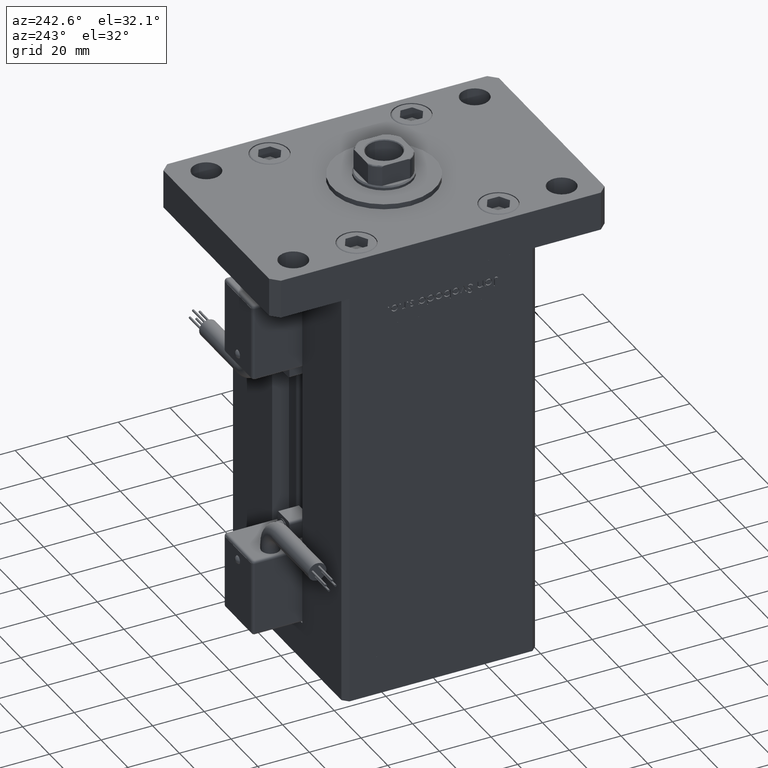
[diagram: clean part render]
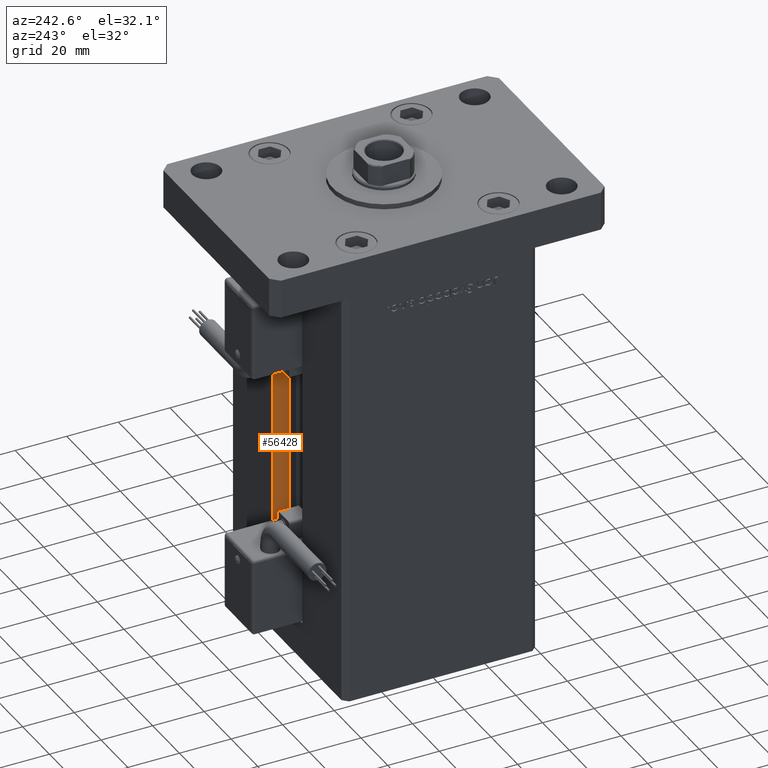
[diagram: same view with one face highlighted and labeled with its STEP entity id]
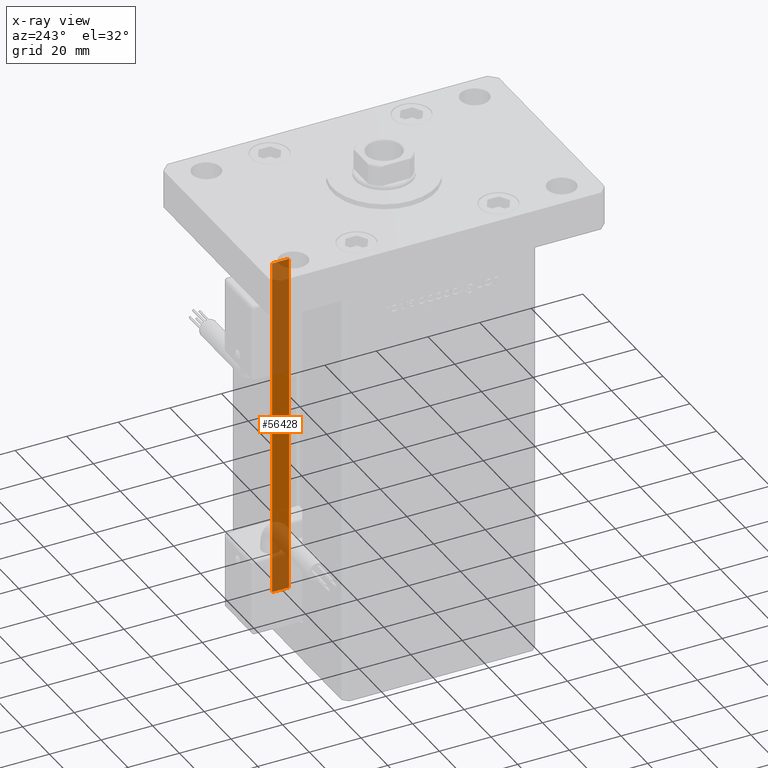
[diagram: x-ray of the same camera — body ghosted, the highlighted face saturated]
A machine part, auxiliary view. The second image highlights one B-rep face of the part: STEP entity #56428.
The next image is the same camera in x-ray: the body ghosted, the highlighted face saturated — about 54% of this face is hidden behind the body in this view.
In plain terms, the highlighted planar face has unit normal (1, 0, 0).
Its self-contained STEP definition (entity closure, byte-faithful):
#530 = VECTOR ( 'NONE', #48768, 1000.000000000000000 ) ;
#897 = EDGE_LOOP ( 'NONE', ( #36921, #45877, #34076, #8873 ) ) ;
#3917 = EDGE_CURVE ( 'NONE', #26639, #27760, #28805, .T. ) ;
#5223 = LINE ( 'NONE', #13501, #530 ) ;
#6534 = PLANE ( 'NONE',  #19341 ) ;
#8873 = ORIENTED_EDGE ( 'NONE', *, *, #23553, .F. ) ;
#10482 = VECTOR ( 'NONE', #27605, 1000.000000000000000 ) ;
#11364 = FACE_OUTER_BOUND ( 'NONE', #897, .T. ) ;
#12534 = CARTESIAN_POINT ( 'NONE',  ( 11.25000000000000000, 37.50000000000000000, 0.000000000000000000 ) ) ;
#13501 = CARTESIAN_POINT ( 'NONE',  ( 11.25000000000000000, 0.000000000000000000, 133.5000000000000000 ) ) ;
#16599 = CARTESIAN_POINT ( 'NONE',  ( 11.25000000000000000, 30.99999999999999289, 0.000000000000000000 ) ) ;
#19341 = AXIS2_PLACEMENT_3D ( 'NONE', #24012, #24562, #41492 ) ;
#20184 = DIRECTION ( 'NONE',  ( 0.000000000000000000, 1.000000000000000000, 0.000000000000000000 ) ) ;
#21962 = CARTESIAN_POINT ( 'NONE',  ( 11.25000000000000000, 30.99999999999999289, 133.5000000000000000 ) ) ;
#22482 = CARTESIAN_POINT ( 'NONE',  ( 11.25000000000000000, 30.99999999999999289, 0.000000000000000000 ) ) ;
#22730 = LINE ( 'NONE', #53691, #10482 ) ;
#23553 = EDGE_CURVE ( 'NONE', #53553, #37155, #5223, .T. ) ;
#24012 = CARTESIAN_POINT ( 'NONE',  ( 11.25000000000000000, 30.99999999999999289, 0.000000000000000000 ) ) ;
#24562 = DIRECTION ( 'NONE',  ( 1.000000000000000000, -0.000000000000000000, 0.000000000000000000 ) ) ;
#25440 = VECTOR ( 'NONE', #39965, 1000.000000000000000 ) ;
#26639 = VERTEX_POINT ( 'NONE', #16599 ) ;
#27605 = DIRECTION ( 'NONE',  ( -0.000000000000000000, -0.000000000000000000, 1.000000000000000000 ) ) ;
#27760 = VERTEX_POINT ( 'NONE', #12534 ) ;
#28805 = LINE ( 'NONE', #46280, #32360 ) ;
#29987 = EDGE_CURVE ( 'NONE', #26639, #37155, #52877, .T. ) ;
#32360 = VECTOR ( 'NONE', #20184, 1000.000000000000000 ) ;
#34076 = ORIENTED_EDGE ( 'NONE', *, *, #29987, .T. ) ;
#36007 = EDGE_CURVE ( 'NONE', #27760, #53553, #22730, .T. ) ;
#36921 = ORIENTED_EDGE ( 'NONE', *, *, #36007, .F. ) ;
#37155 = VERTEX_POINT ( 'NONE', #21962 ) ;
#39965 = DIRECTION ( 'NONE',  ( -0.000000000000000000, -0.000000000000000000, 1.000000000000000000 ) ) ;
#41492 = DIRECTION ( 'NONE',  ( 0.000000000000000000, 0.000000000000000000, -1.000000000000000000 ) ) ;
#45877 = ORIENTED_EDGE ( 'NONE', *, *, #3917, .F. ) ;
#46280 = CARTESIAN_POINT ( 'NONE',  ( 11.25000000000000000, 30.99999999999999289, 0.000000000000000000 ) ) ;
#48768 = DIRECTION ( 'NONE',  ( -0.000000000000000000, -1.000000000000000000, 0.000000000000000000 ) ) ;
#50879 = CARTESIAN_POINT ( 'NONE',  ( 11.24999999999999289, 37.50000000000000000, 133.5000000000000000 ) ) ;
#52877 = LINE ( 'NONE', #22482, #25440 ) ;
#53553 = VERTEX_POINT ( 'NONE', #50879 ) ;
#53691 = CARTESIAN_POINT ( 'NONE',  ( 11.25000000000000000, 37.50000000000000000, 0.000000000000000000 ) ) ;
#56428 = ADVANCED_FACE ( 'NONE', ( #11364 ), #6534, .F. ) ;